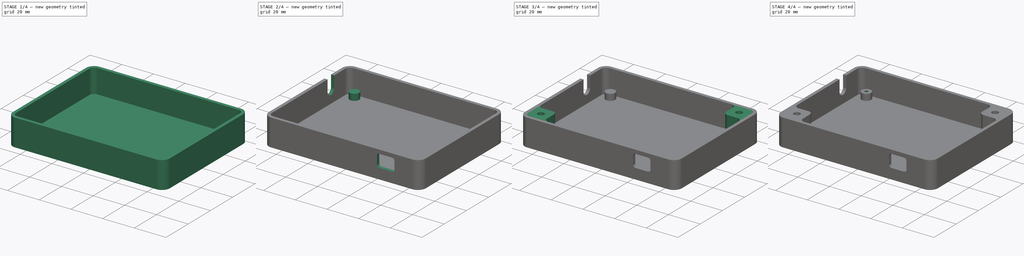
[diagram: build sequence overview — one tinted view per stage of 4, left to right]
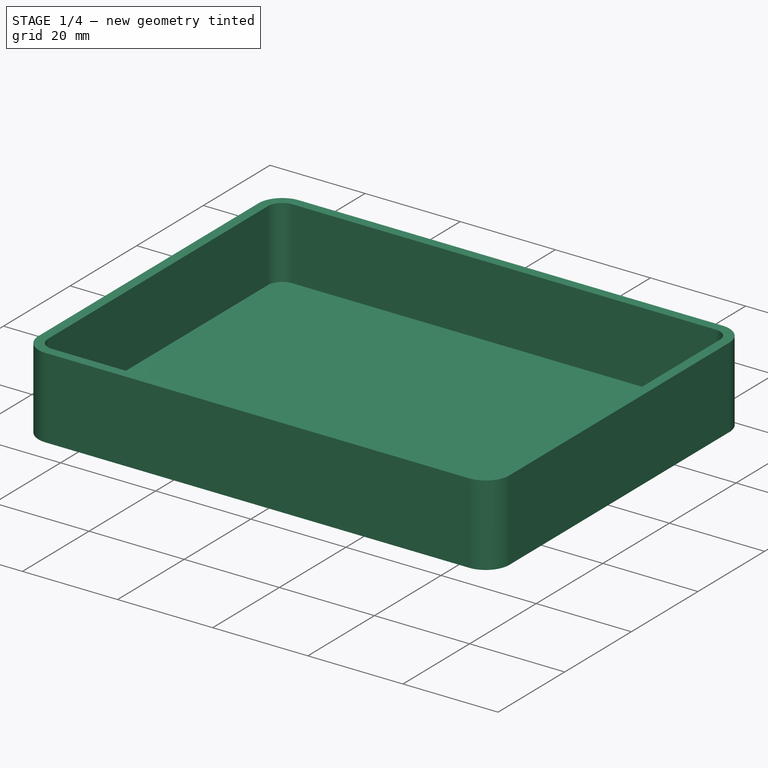
[diagram: stage 1 of 4 — iso view after this stage's code; geometry added in this stage tinted green]
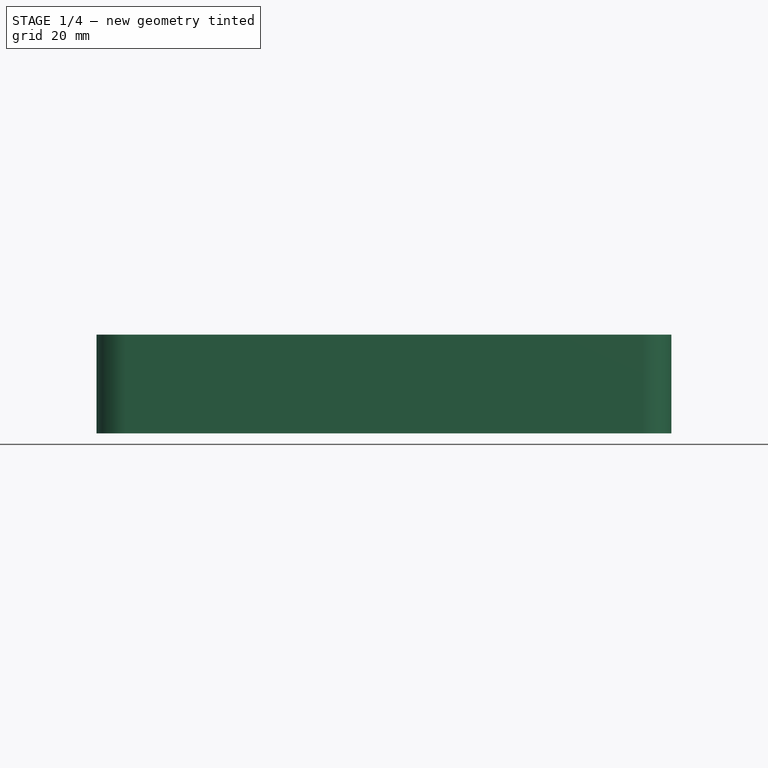
[diagram: stage 1 of 4 — front view after this stage's code; geometry added in this stage tinted green]
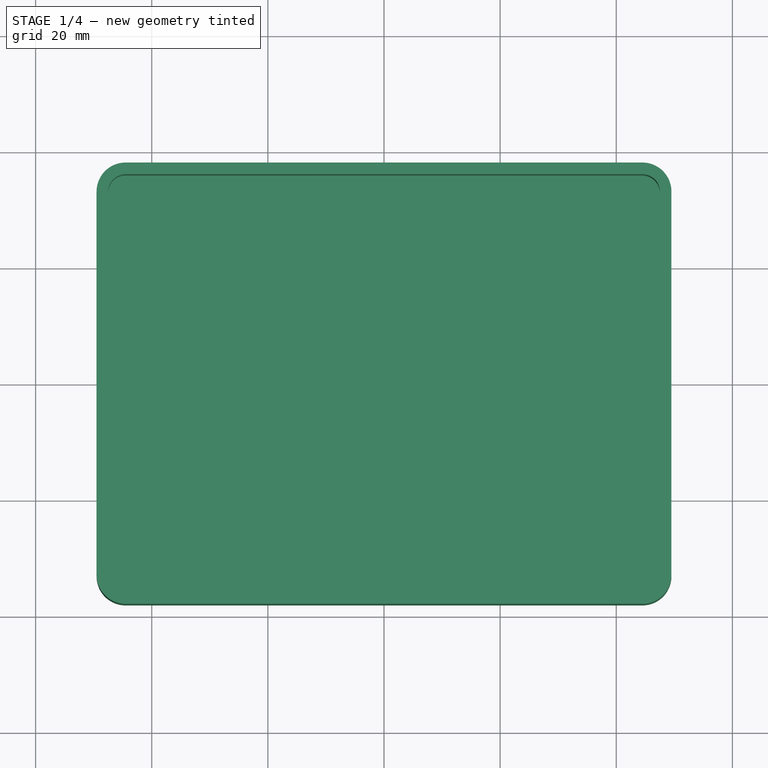
[diagram: stage 1 of 4 — top view after this stage's code; geometry added in this stage tinted green]
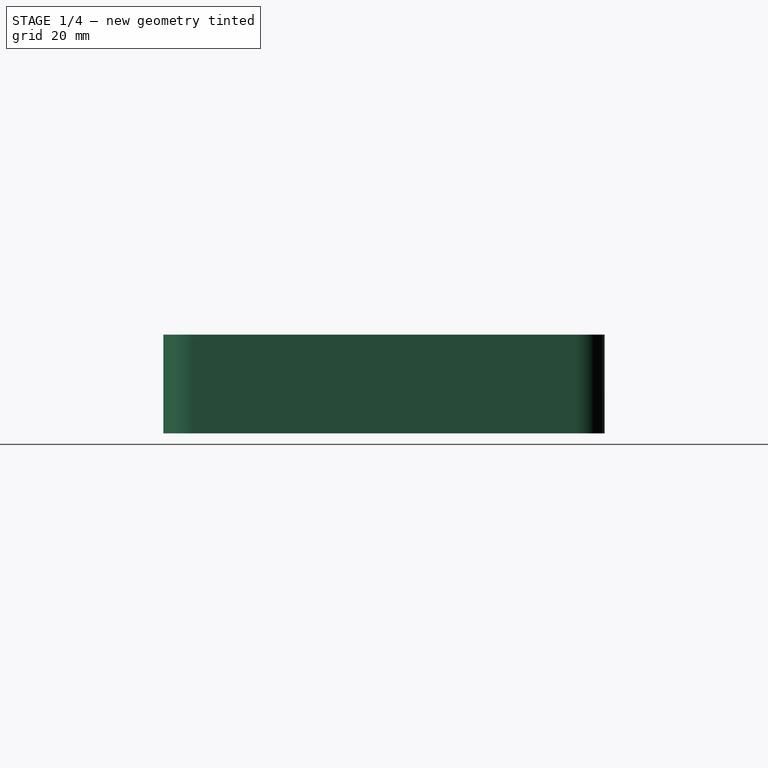
[diagram: stage 1 of 4 — right view after this stage's code; geometry added in this stage tinted green]
FCSTD DOCUMENT  (FreeCAD 0.18.4R)
Label: c4g-temp
License: All rights reserved
LicenseURL: http://en.wikipedia.org/wiki/All_rights_reserved
objects: Sketcher::SketchObject×7, PartDesign::Pocket×4, PartDesign::Pad×3, PartDesign::Fillet×3, PartDesign::Body×1
note: 25 computed .brp shape members not serialized (recipe doc carries the construction recipe); baked Part::Feature solids carry a one-line shape summary decoded from their .brp

FEATURE [Sketcher::SketchObject] Sketch
  MapMode = 5
  Support = -> [XY_Plane]
  sketch-geometry (8):
    g0: LineSegment StartX=-44.5 StartY=38 StartZ=0 EndX=44.5 EndY=38 EndZ=0
    g1: LineSegment StartX=49.5 StartY=33 StartZ=0 EndX=49.5 EndY=-33 EndZ=0
    g2: LineSegment StartX=44.5 StartY=-38 StartZ=0 EndX=-44.5 EndY=-38 EndZ=0
    g3: LineSegment StartX=-49.5 StartY=-33 StartZ=0 EndX=-49.5 EndY=33 EndZ=0
    g4: ArcOfCircle CenterX=-44.5 CenterY=33 CenterZ=0 NormalX=0 NormalY=0 NormalZ=1 AngleXU=0 Radius=5 StartAngle=1.5708 EndAngle=3.14159
    g5: ArcOfCircle CenterX=-44.5 CenterY=-33 CenterZ=0 NormalX=0 NormalY=0 NormalZ=1 AngleXU=0 Radius=5 StartAngle=3.14159 EndAngle=4.71239
    g6: ArcOfCircle CenterX=44.5 CenterY=-33 CenterZ=0 NormalX=0 NormalY=0 NormalZ=1 AngleXU=0 Radius=5 StartAngle=4.71239 EndAngle=6.28319
    g7: ArcOfCircle CenterX=44.5 CenterY=33 CenterZ=0 NormalX=0 NormalY=0 NormalZ=1 AngleXU=0 Radius=5 StartAngle=0 EndAngle=1.5708
  constraints (19):
    c: Horizontal(g0)
    c: Horizontal(g2)
    c: Vertical(g1)
    c: Vertical(g3)
    c: Tangent(g3,g4) = 1.5708
    c: Tangent(g0,g4) = 1.5708
    c: Tangent(g3,g5) = 1.5708
    c: Tangent(g2,g5) = 1.5708
    c: Tangent(g2,g6) = 1.5708
    c: Tangent(g1,g6) = 1.5708
    c: Tangent(g0,g7) = 1.5708
    c: Tangent(g1,g7) = 1.5708
    c: Equal(g7,g6)
    c: Equal(g6,g5)
    c: Equal(g5,g4)
    c: Symmetric(g4,g6,g-1)
    c: DistanceX(g3,g1) = 99
    c: DistanceY(g2,g0) = 76
    c: Radius(g6) = 5
FEATURE [PartDesign::Pad] Pad
  Length = 17
  Length2 = 100
  Profile = -> Sketch
  Type = 0
FEATURE [Sketcher::SketchObject] Sketch001
  ExternalGeometry = -> [Pad]
  MapMode = 5
  Placement = pos=(0,0,17) rot=(0,0,1;0rad)
  Support = -> [Pad]
  sketch-geometry (8):
    g0: LineSegment StartX=-44.5 StartY=36 StartZ=0 EndX=44.5 EndY=36 EndZ=0
    g1: LineSegment StartX=47.5 StartY=33 StartZ=0 EndX=47.5 EndY=-33 EndZ=0
    g2: LineSegment StartX=44.5 StartY=-36 StartZ=0 EndX=-44.5 EndY=-36 EndZ=0
    g3: LineSegment StartX=-47.5 StartY=-33 StartZ=0 EndX=-47.5 EndY=33 EndZ=0
    g4: ArcOfCircle CenterX=-44.5 CenterY=33 CenterZ=0 NormalX=0 NormalY=0 NormalZ=1 AngleXU=0 Radius=3 StartAngle=1.5708 EndAngle=3.14159
    g5: ArcOfCircle CenterX=-44.5 CenterY=-33 CenterZ=0 NormalX=0 NormalY=0 NormalZ=1 AngleXU=0 Radius=3 StartAngle=3.14159 EndAngle=4.71239
    g6: ArcOfCircle CenterX=44.5 CenterY=-33 CenterZ=0 NormalX=0 NormalY=0 NormalZ=1 AngleXU=0 Radius=3 StartAngle=4.71239 EndAngle=6.28319
    g7: ArcOfCircle CenterX=44.5 CenterY=33 CenterZ=0 NormalX=0 NormalY=0 NormalZ=1 AngleXU=0 Radius=3 StartAngle=-9e-16 EndAngle=1.5708
  constraints (19):
    c: Horizontal(g0)
    c: Horizontal(g2)
    c: Vertical(g1)
    c: Vertical(g3)
    c: Tangent(g0,g4) = 1.5708
    c: Tangent(g3,g4) = 1.5708
    c: Tangent(g3,g5) = 1.5708
    c: Tangent(g2,g5) = 1.5708
    c: Tangent(g2,g6) = 1.5708
    c: Tangent(g1,g6) = 1.5708
    c: Tangent(g0,g7) = 1.5708
    c: Tangent(g1,g7) = 1.5708
    c: Equal(g7,g6)
    c: Equal(g6,g5)
    c: Equal(g5,g4)
    c: Symmetric(g6,g4,g-1)
    c: DistanceY(g0,g-4) = 2
    c: DistanceX(g-3,g3) = 2
    c: Vertical(g0,g-4)
FEATURE [PartDesign::Pocket] Pocket
  BaseFeature = -> Pad
  Length = 15
  Length2 = 100
  Profile = -> Sketch001
  Type = 0
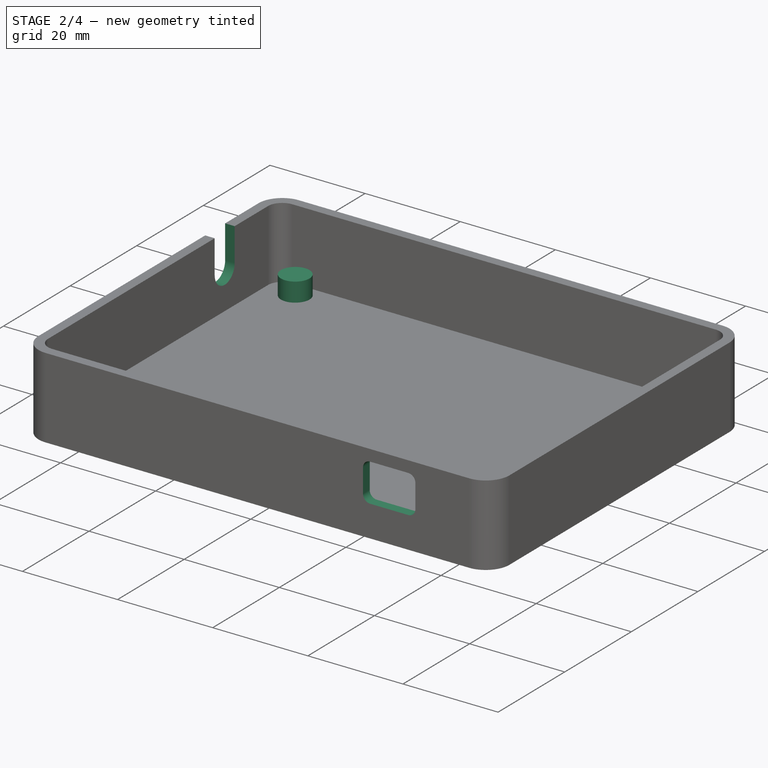
[diagram: stage 2 of 4 — iso view after this stage's code; geometry added in this stage tinted green]
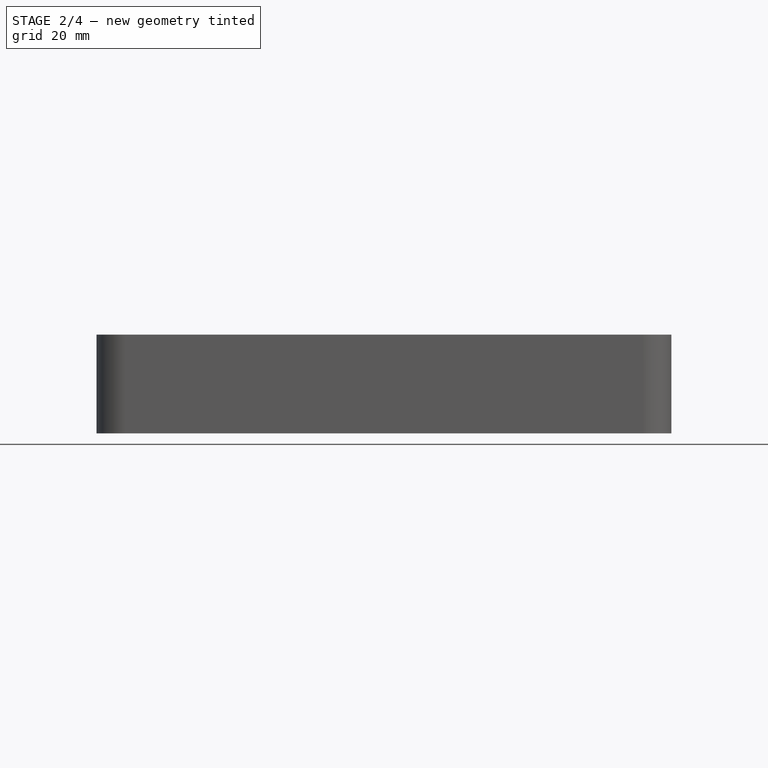
[diagram: stage 2 of 4 — front view after this stage's code; geometry added in this stage tinted green]
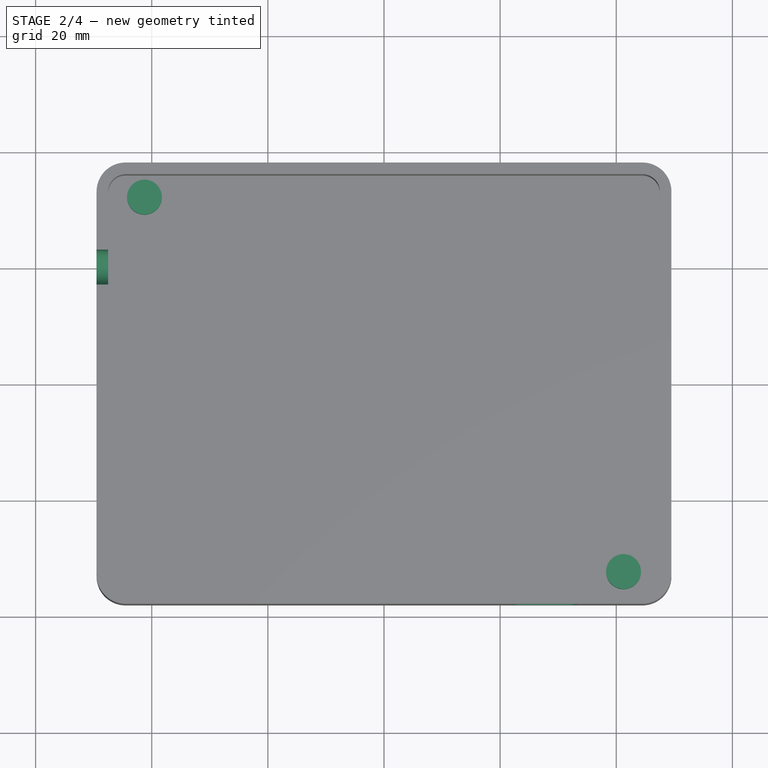
[diagram: stage 2 of 4 — top view after this stage's code; geometry added in this stage tinted green]
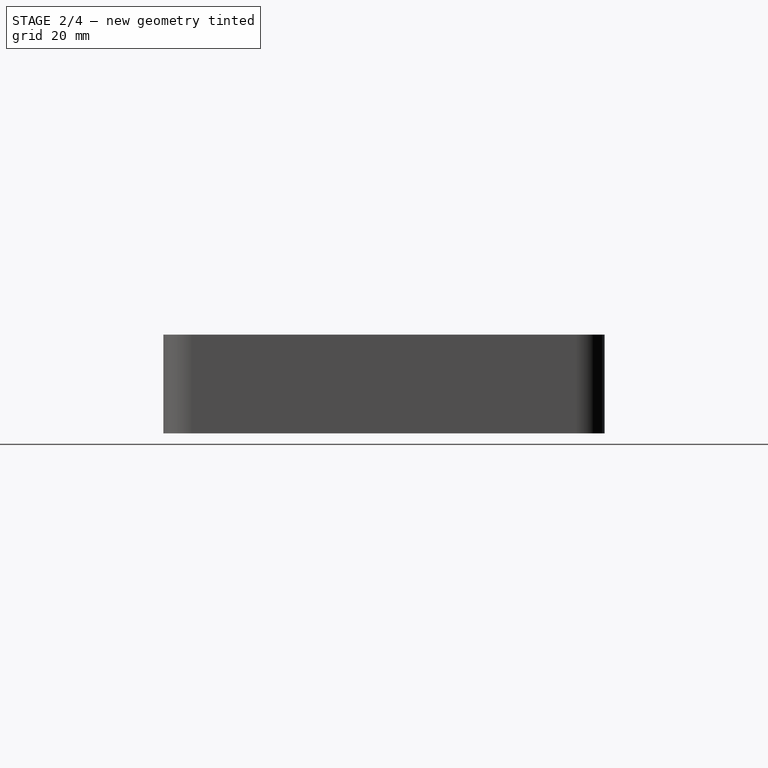
[diagram: stage 2 of 4 — right view after this stage's code; geometry added in this stage tinted green]
FEATURE [Sketcher::SketchObject] Sketch002
  MapMode = 5
  Placement = pos=(0,0,2) rot=(0,0,1;0rad)
  Support = -> [Pocket]
  sketch-geometry (2):
    g0: Circle CenterX=-41.25 CenterY=32.25 CenterZ=0 NormalX=0 NormalY=0 NormalZ=1 AngleXU=0 Radius=3
    g1: Circle CenterX=41.25 CenterY=-32.25 CenterZ=0 NormalX=0 NormalY=0 NormalZ=1 AngleXU=0 Radius=3
  constraints (5):
    c: Radius(g0) = 3
    c: DistanceY(g1,g-1) = 32.25
    c: DistanceX(g0,g-1) = 41.25
    c: Symmetric(g1,g0,g-1)
    c: Equal(g1,g0)
FEATURE [PartDesign::Pad] Pad001
  BaseFeature = -> Pocket
  Length = 4
  Length2 = 100
  Profile = -> Sketch002
  Type = 0
FEATURE [Sketcher::SketchObject] Sketch004
  MapMode = 5
  Placement = pos=(0,-38,0) rot=(1,0,0;1.5708rad)
  sketch-geometry (8):
    g0: LineSegment StartX=23.7 StartY=14.6 StartZ=0 EndX=31.7 EndY=14.6 EndZ=0
    g1: LineSegment StartX=33.2 StartY=13.1 StartZ=0 EndX=33.2 EndY=8.1 EndZ=0
    g2: LineSegment StartX=31.7 StartY=6.6 StartZ=0 EndX=23.7 EndY=6.6 EndZ=0
    g3: LineSegment StartX=22.2 StartY=8.1 StartZ=0 EndX=22.2 EndY=13.1 EndZ=0
    g4: ArcOfCircle CenterX=23.7 CenterY=13.1 CenterZ=0 NormalX=0 NormalY=0 NormalZ=1 AngleXU=0 Radius=1.5 StartAngle=1.5708 EndAngle=3.14159
    g5: ArcOfCircle CenterX=23.7 CenterY=8.1 CenterZ=0 NormalX=0 NormalY=0 NormalZ=1 AngleXU=0 Radius=1.5 StartAngle=3.14159 EndAngle=4.71239
    g6: ArcOfCircle CenterX=31.7 CenterY=8.1 CenterZ=0 NormalX=0 NormalY=0 NormalZ=1 AngleXU=0 Radius=1.5 StartAngle=4.71239 EndAngle=6.28319
    g7: ArcOfCircle CenterX=31.7 CenterY=13.1 CenterZ=0 NormalX=0 NormalY=0 NormalZ=1 AngleXU=0 Radius=1.5 StartAngle=0 EndAngle=1.5708
  constraints (20):
    c: Horizontal(g0)
    c: Horizontal(g2)
    c: Vertical(g1)
    c: Vertical(g3)
    c: Tangent(g3,g4) = 1.5708
    c: Tangent(g0,g4) = 1.5708
    c: Tangent(g3,g5) = 1.5708
    c: Tangent(g2,g5) = 1.5708
    c: Tangent(g2,g6) = 1.5708
    c: Tangent(g1,g6) = 1.5708
    c: Tangent(g0,g7) = 1.5708
    c: Tangent(g1,g7) = 1.5708
    c: Equal(g7,g6)
    c: Equal(g6,g5)
    c: Equal(g5,g4)
    c: DistanceY(g2,g0) = 8
    c: DistanceX(g3,g1) = 11
    c: Radius(g7) = 1.5
    c: DistanceY(g-1,g2) = 6.6
    c: DistanceX(g-1,g3) = 22.2
FEATURE [PartDesign::Pocket] Pocket002
  BaseFeature = -> Pad001
  Length = 5
  Length2 = 100
  Profile = -> Sketch004
  Type = 0
FEATURE [Sketcher::SketchObject] Sketch005
  ExternalGeometry = -> [Pocket002]
  MapMode = 5
  Placement = pos=(-49.5,0,0) rot=(0.57735,-0.57735,-0.57735;2.0944rad)
  Support = -> [Pocket002]
  sketch-geometry (4):
    g0: LineSegment StartX=-23 StartY=17 StartZ=0 EndX=-17 EndY=17 EndZ=0
    g1: LineSegment StartX=-17 StartY=17 StartZ=0 EndX=-17 EndY=10 EndZ=0
    g2: LineSegment StartX=-23 StartY=10 StartZ=0 EndX=-23 EndY=17 EndZ=0
    g3: ArcOfCircle CenterX=-20 CenterY=10 CenterZ=0 NormalX=0 NormalY=0 NormalZ=1 AngleXU=0 Radius=3 StartAngle=3.14159 EndAngle=6.28319
  constraints (13):
    c: Coincident(g0,g1)
    c: Coincident(g2,g0)
    c: Horizontal(g0)
    c: Vertical(g1)
    c: Vertical(g2)
    c: PointOnObject(g0,g-3)
    c: Coincident(g3,g2)
    c: Coincident(g3,g1)
    c: Horizontal(g3,g1)
    c: Horizontal(g3,g2)
    c: Radius(g3) = 3
    c: DistanceX(g0,g-1) = 17
    c: DistanceY(g2,g2) = 7
FEATURE [PartDesign::Pocket] Pocket003
  BaseFeature = -> Pocket002
  Length = 5
  Length2 = 100
  Profile = -> Sketch005
  Type = 0
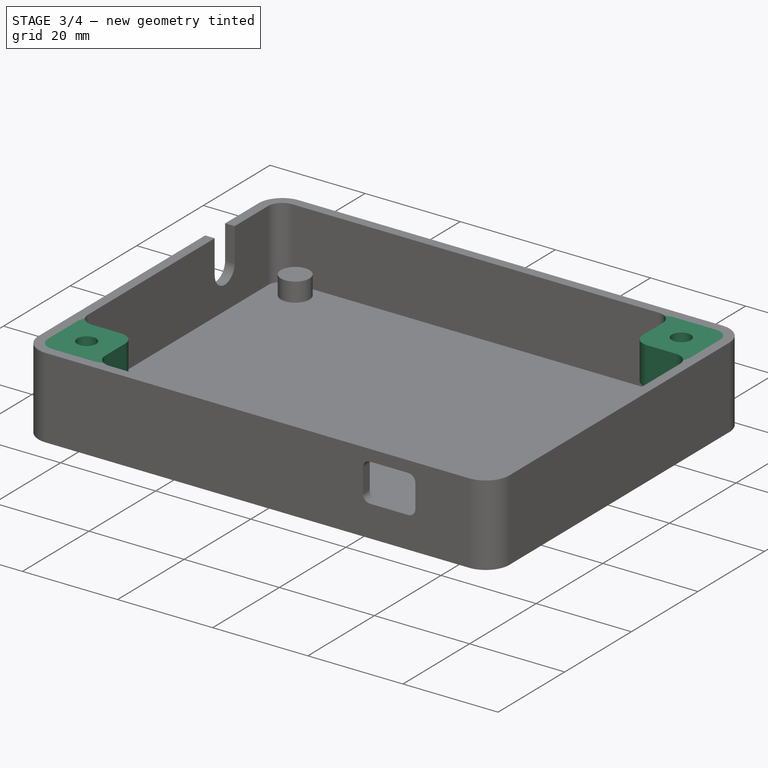
[diagram: stage 3 of 4 — iso view after this stage's code; geometry added in this stage tinted green]
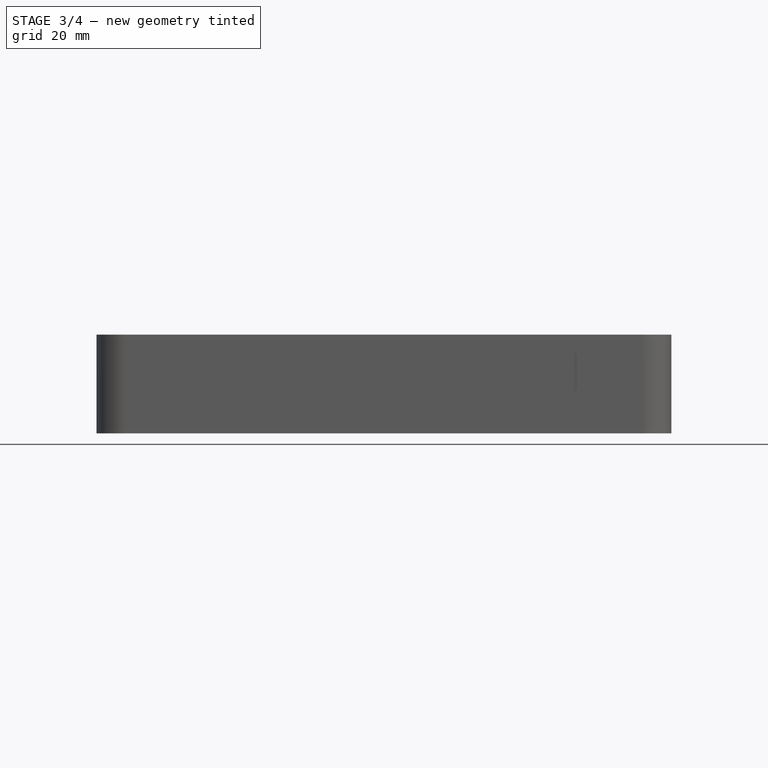
[diagram: stage 3 of 4 — front view after this stage's code; geometry added in this stage tinted green]
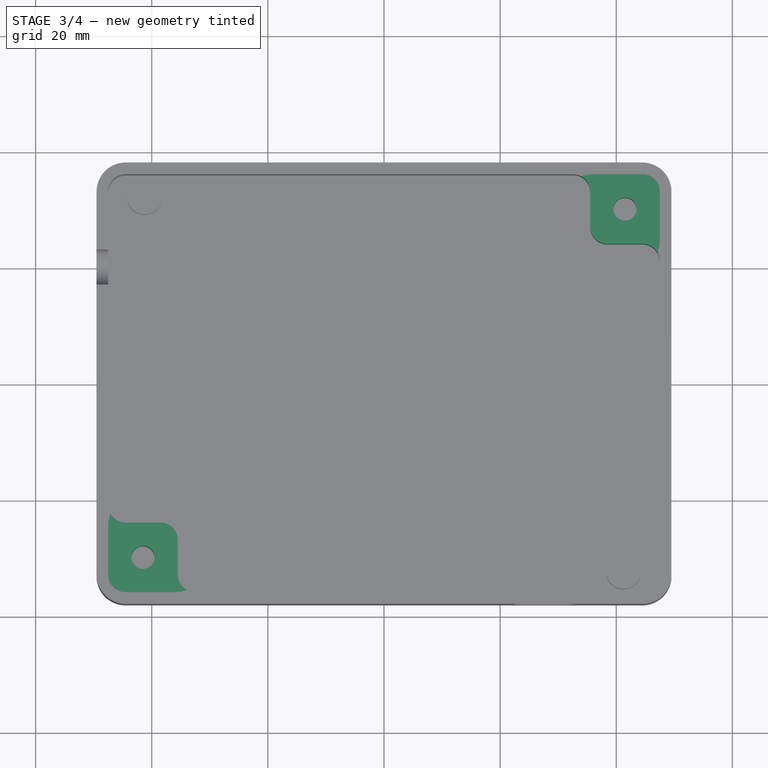
[diagram: stage 3 of 4 — top view after this stage's code; geometry added in this stage tinted green]
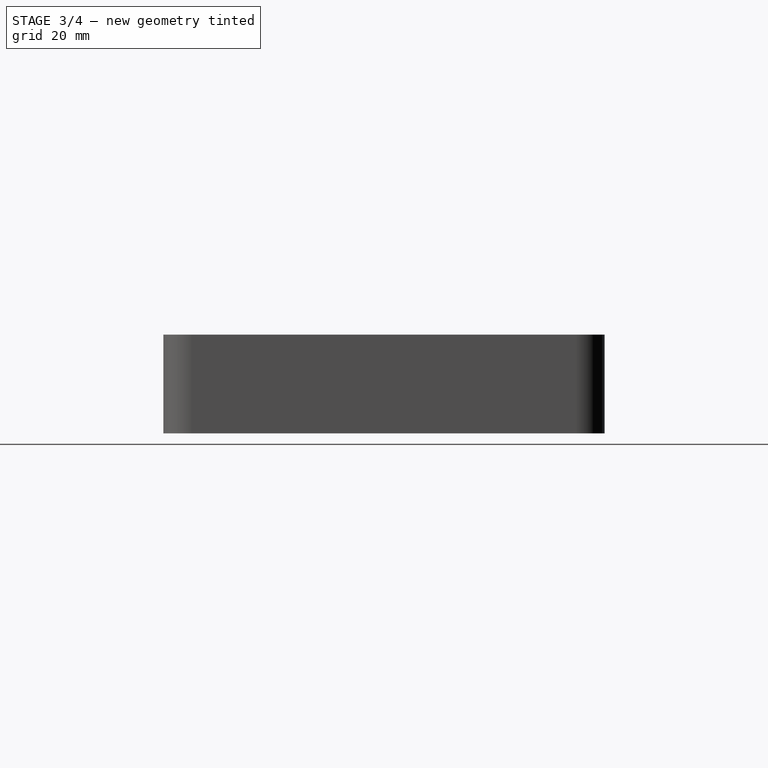
[diagram: stage 3 of 4 — right view after this stage's code; geometry added in this stage tinted green]
FEATURE [Sketcher::SketchObject] Sketch006
  AttachmentOffset = pos=(0,0,7) rot=(0,0,1;0rad)
  ExternalGeometry = -> [Pocket003]
  MapMode = 5
  Placement = pos=(0,0,9) rot=(0,0,1;0rad)
  Support = -> [Pocket003]
  sketch-geometry (14):
    g0: LineSegment StartX=44.5 StartY=36 StartZ=0 EndX=35.5 EndY=36 EndZ=0
    g1: LineSegment StartX=35.5 StartY=36 StartZ=0 EndX=35.5 EndY=27 EndZ=0
    g2: LineSegment StartX=38.5 StartY=24 StartZ=0 EndX=47.5 EndY=24 EndZ=0
    g3: LineSegment StartX=47.5 StartY=24 StartZ=0 EndX=47.5 EndY=33 EndZ=0
    g4: LineSegment StartX=-38.5 StartY=-24 StartZ=0 EndX=-47.5 EndY=-24 EndZ=0
    g5: LineSegment StartX=-47.5 StartY=-24 StartZ=0 EndX=-47.5 EndY=-33 EndZ=0
    g6: LineSegment StartX=-44.5 StartY=-36 StartZ=0 EndX=-35.5 EndY=-36 EndZ=0
    g7: LineSegment StartX=-35.5 StartY=-36 StartZ=0 EndX=-35.5 EndY=-27 EndZ=0
    g8: ArcOfCircle CenterX=-44.5 CenterY=-33 CenterZ=0 NormalX=0 NormalY=0 NormalZ=1 AngleXU=0 Radius=3 StartAngle=3.14159 EndAngle=4.71239
    g9: ArcOfCircle CenterX=-38.5 CenterY=-27 CenterZ=0 NormalX=0 NormalY=0 NormalZ=1 AngleXU=0 Radius=3 StartAngle=6.2e-15 EndAngle=1.5708
    g10: ArcOfCircle CenterX=38.5 CenterY=27 CenterZ=0 NormalX=0 NormalY=0 NormalZ=1 AngleXU=0 Radius=3 StartAngle=3.14159 EndAngle=4.71239
    g11: ArcOfCircle CenterX=44.5 CenterY=33 CenterZ=0 NormalX=0 NormalY=0 NormalZ=1 AngleXU=0 Radius=3 StartAngle=1e-16 EndAngle=1.5708
    g12: Circle CenterX=41.5 CenterY=30 CenterZ=0 NormalX=0 NormalY=0 NormalZ=1 AngleXU=0 Radius=1.99
    g13: Circle CenterX=-41.5 CenterY=-30 CenterZ=0 NormalX=0 NormalY=0 NormalZ=1 AngleXU=0 Radius=1.99
  constraints (33):
    c: Coincident(g0,g1)
    c: Coincident(g2,g3)
    c: Horizontal(g0)
    c: Horizontal(g2)
    c: Coincident(g4,g5)
    c: Coincident(g6,g7)
    c: Horizontal(g4)
    c: Horizontal(g6)
    c: Vertical(g5)
    c: Tangent(g5,g8) = -1.5708
    c: Tangent(g6,g8) = -1.5708
    c: Tangent(g4,g9) = -1.5708
    c: Tangent(g7,g9) = -1.5708
    c: Tangent(g1,g10) = -1.5708
    c: Tangent(g2,g10) = -1.5708
    c: Tangent(g0,g11) = -1.5708
    c: Tangent(g3,g11) = -1.5708
    c: Equal(g2,g3)
    c: Equal(g3,g1)
    c: Equal(g1,g0)
    c: Equal(g0,g4)
    c: Equal(g4,g7)
    c: Equal(g7,g6)
    c: Equal(g6,g5)
    c: Equal(g8,g10)
    c: Symmetric(g9,g10,g-1)
    c: Coincident(g-3,g11)
    c: Coincident(g-3,g3)
    c: Equal(g13,g12)
    c: Symmetric(g11,g10,g12)
    c: Symmetric(g13,g12,g-1)
    c: DistanceX(g1,g2) = 12
    c: Radius(g12) = 1.99
FEATURE [PartDesign::Pad] Pad002
  BaseFeature = -> Pocket003
  Length = 8
  Length2 = 100
  Profile = -> Sketch006
  Type = 0
FEATURE [PartDesign::Fillet] Fillet
  Base = -> Pad002 [Edge73,Edge64,Edge79,Edge61]
  BaseFeature = -> Pad002
  Radius = 3
FEATURE [PartDesign::Fillet] Fillet001
  Base = -> Fillet [Edge33,Edge64,Edge62,Edge31]
  BaseFeature = -> Fillet
  Radius = 2
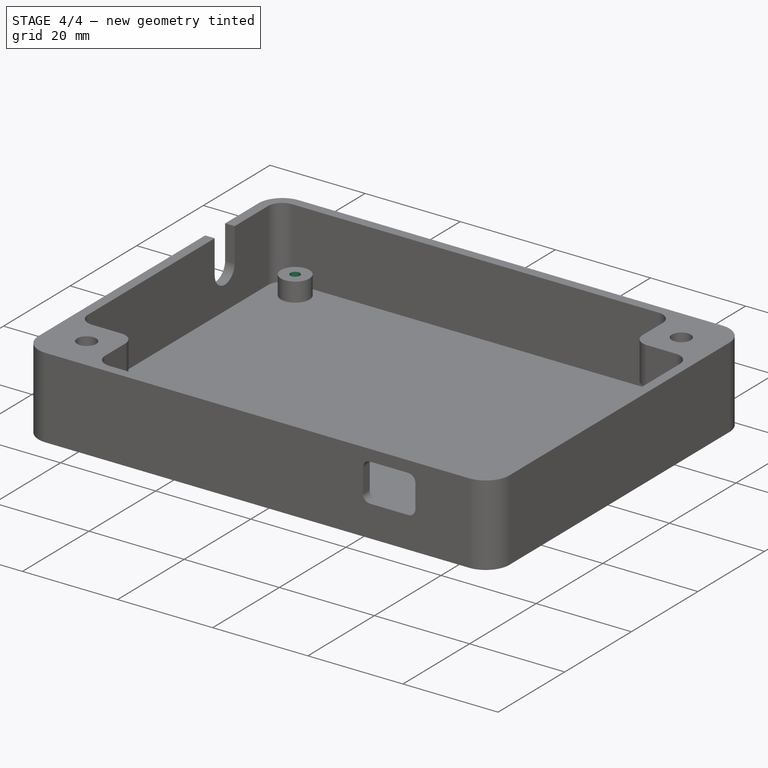
[diagram: stage 4 of 4 — iso view after this stage's code; geometry added in this stage tinted green]
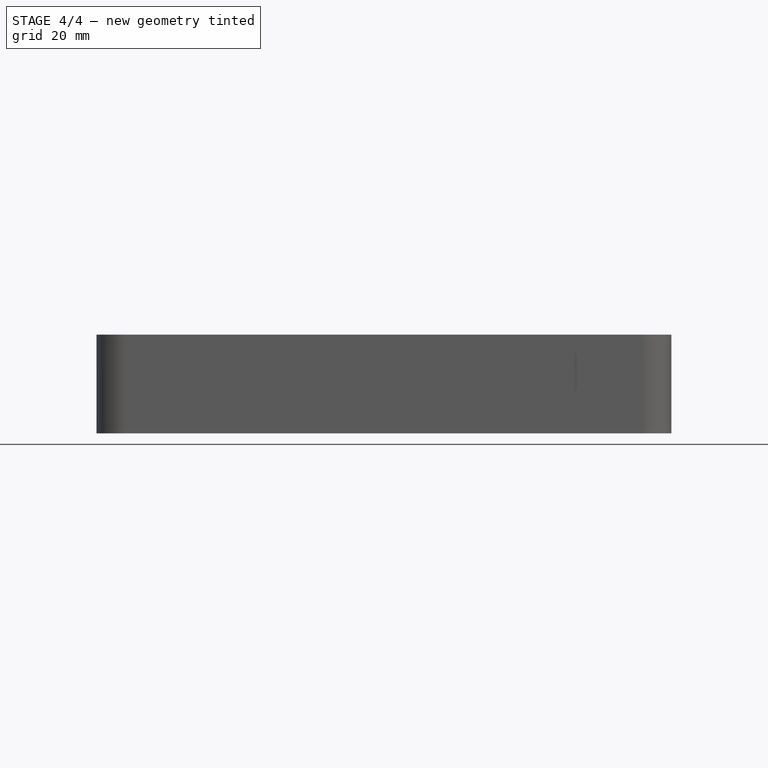
[diagram: stage 4 of 4 — front view after this stage's code; geometry added in this stage tinted green]
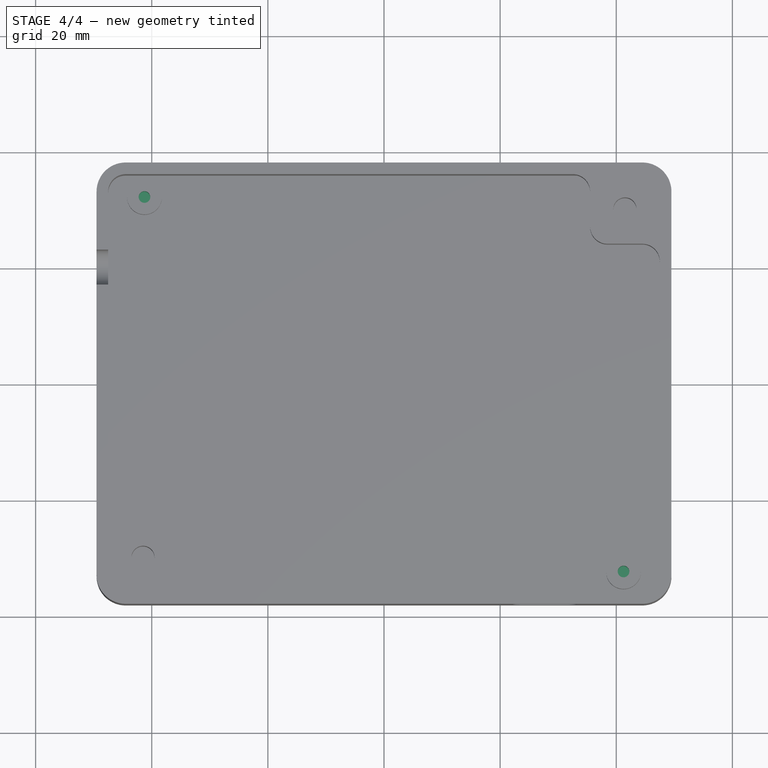
[diagram: stage 4 of 4 — top view after this stage's code; geometry added in this stage tinted green]
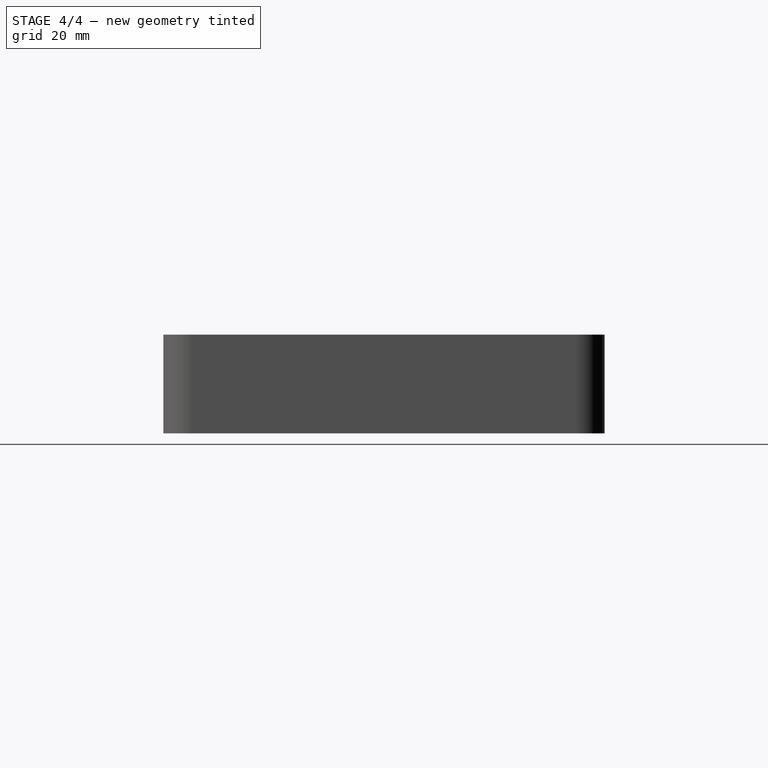
[diagram: stage 4 of 4 — right view after this stage's code; geometry added in this stage tinted green]
FEATURE [PartDesign::Fillet] Fillet002
  Base = -> Fillet001 [Edge77,Edge74,Edge72,Edge82,Edge81]
  BaseFeature = -> Fillet001
  Radius = 2
FEATURE [Sketcher::SketchObject] Sketch007
  ExternalGeometry = -> [Fillet002]
  MapMode = 5
  Placement = pos=(0,0,6) rot=(0,0,1;0rad)
  Support = -> [Fillet002]
  sketch-geometry (2):
    g0: Circle CenterX=41.25 CenterY=-32.25 CenterZ=0 NormalX=0 NormalY=0 NormalZ=1 AngleXU=0 Radius=1
    g1: Circle CenterX=-41.25 CenterY=32.25 CenterZ=0 NormalX=0 NormalY=0 NormalZ=1 AngleXU=0 Radius=1
  constraints (4):
    c: Equal(g1,g0)
    c: Radius(g0) = 1
    c: Symmetric(g0,g1,g-1)
    c: Coincident(g1,g-3)
FEATURE [PartDesign::Pocket] Pocket004
  BaseFeature = -> Fillet002
  Length = 4.5
  Length2 = 100
  Profile = -> Sketch007
  Type = 0
FEATURE [PartDesign::Body] Body
  Group = -> [Sketch,Pad,Sketch001,Pocket,Sketch002,Pad001,Sketch004,Pocket002,Sketch005,Pocket003,Sketch006,Pad002,Fillet,Fillet001,Fillet002,Sketch007,Pocket004]
  Origin = -> Origin
  Tip = -> Pocket004
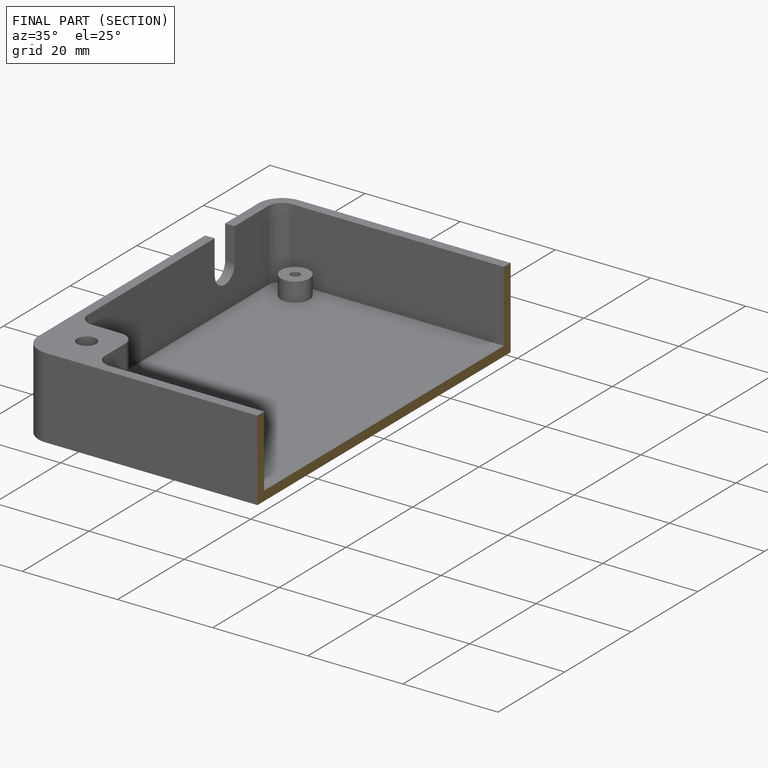
[diagram: finished part — half-section view (interior)]
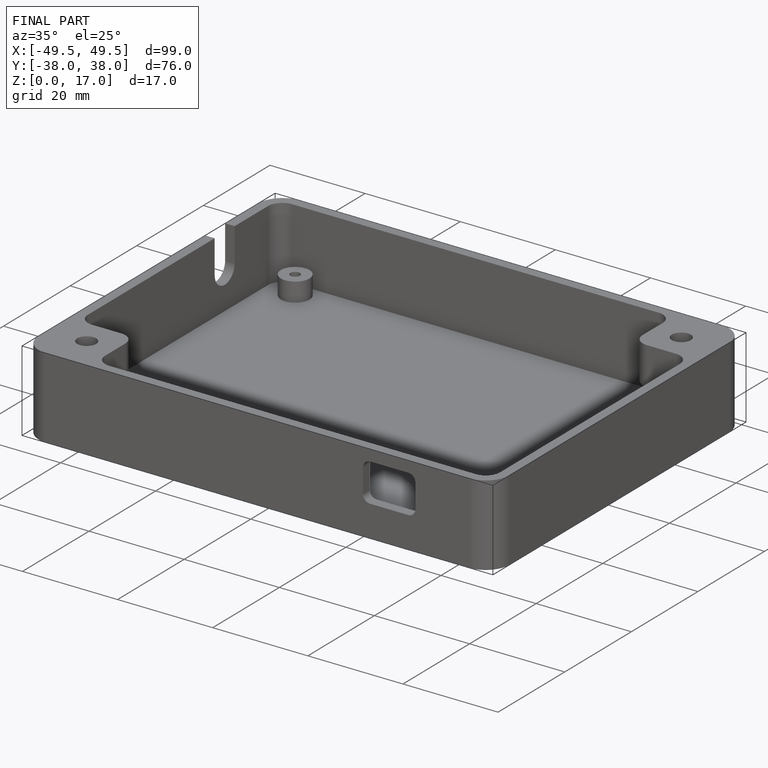
[diagram: finished part — iso view with bounding-box wireframe]
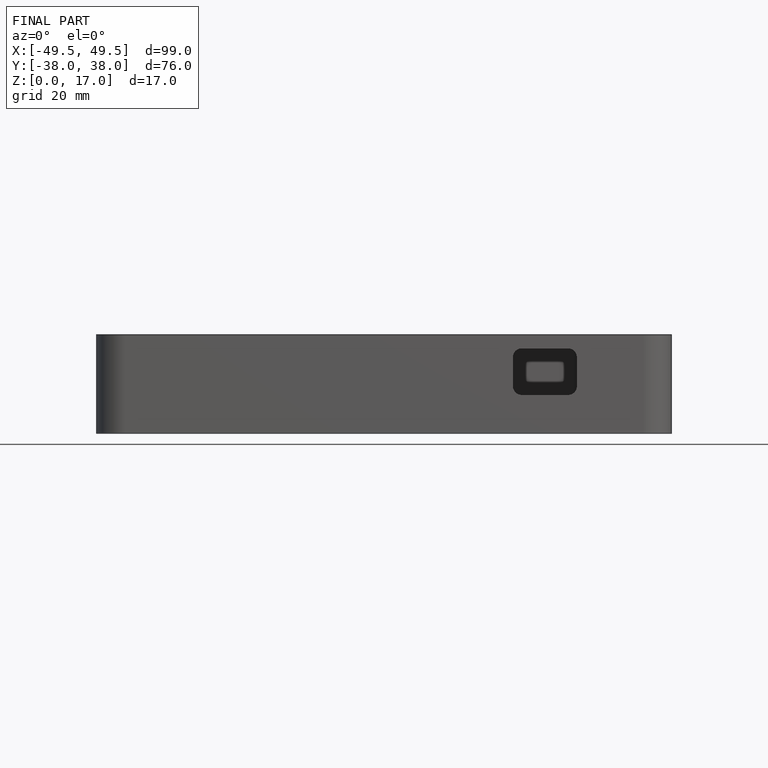
[diagram: finished part — front view with bounding-box wireframe]
